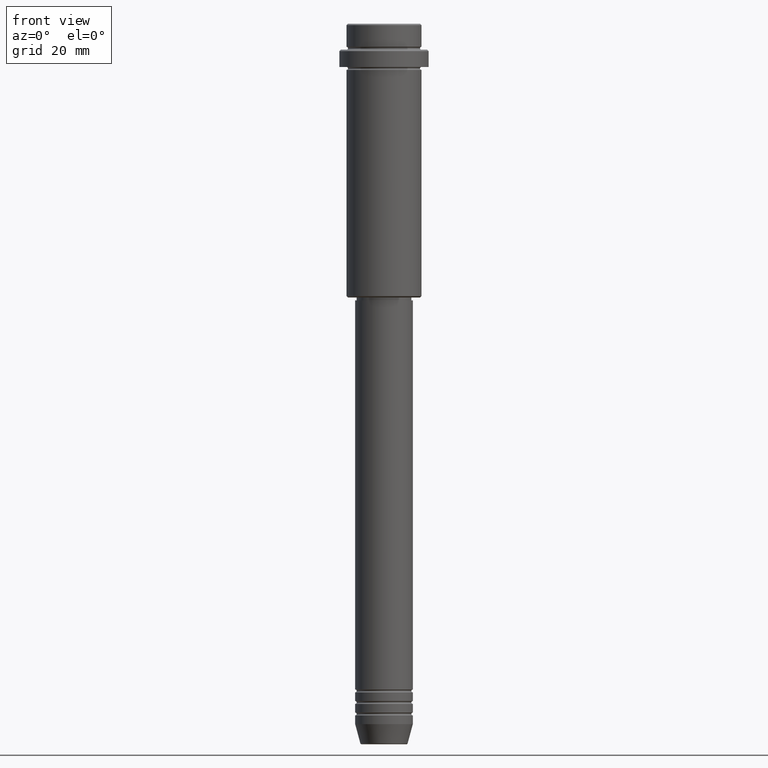
[diagram: clean part render]
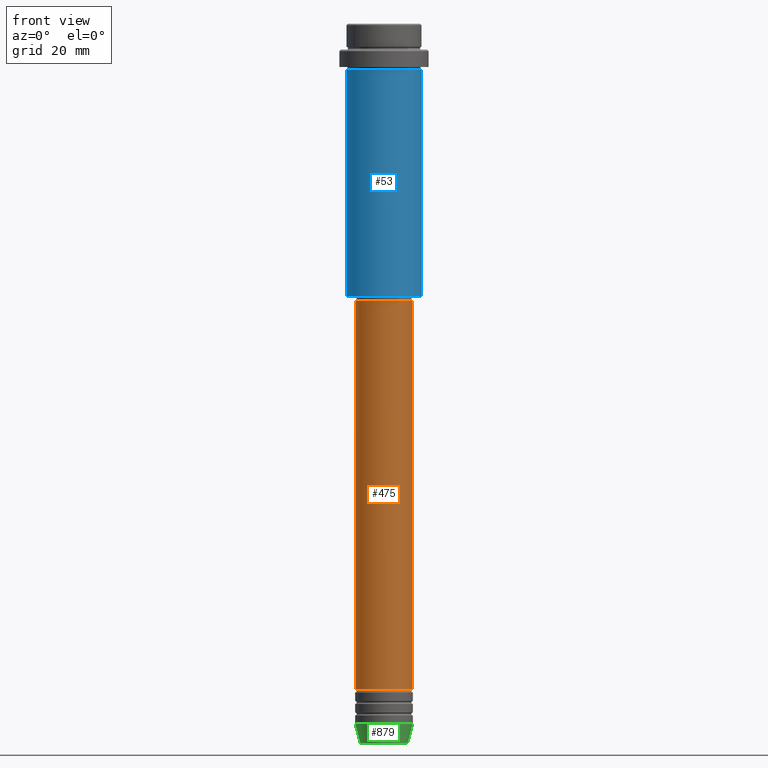
[diagram: same view with three faces highlighted in distinct colors, each labeled with its STEP entity id]
A machine part, front view with three faces highlighted in distinct colors.
Their STEP definitions:

[orange] entity #475 — the highlighted cylindrical surface (edge-blend (fillet) strip) has radius 10 mm, axis along (-0, -0, 1).
#41 = ORIENTED_EDGE ( 'NONE', *, *, #507, .T. ) ;
#45 = ORIENTED_EDGE ( 'NONE', *, *, #443, .F. ) ;
#76 = FACE_OUTER_BOUND ( 'NONE', #1351, .T. ) ;
#78 = EDGE_CURVE ( 'NONE', #1259, #1372, #1269, .T. ) ;
#166 = AXIS2_PLACEMENT_3D ( 'NONE', #401, #537, #856 ) ;
#181 = CARTESIAN_POINT ( 'NONE',  ( 0.000000000000000000, 0.000000000000000000, -96.00000000000000000 ) ) ;
#224 = CARTESIAN_POINT ( 'NONE',  ( -10.00000000000000178, 1.224646799147353454E-15, -96.00000000000000000 ) ) ;
#254 = DIRECTION ( 'NONE',  ( -0.000000000000000000, -0.000000000000000000, 1.000000000000000000 ) ) ;
#265 = CARTESIAN_POINT ( 'NONE',  ( -10.00000000000000178, 1.224646799147353454E-15, 0.000000000000000000 ) ) ;
#330 = CARTESIAN_POINT ( 'NONE',  ( -10.00000000000000000, 1.224646799147353256E-15, -230.9999999999998863 ) ) ;
#351 = ORIENTED_EDGE ( 'NONE', *, *, #78, .F. ) ;
#379 = CARTESIAN_POINT ( 'NONE',  ( 10.00000000000000000, 0.000000000000000000, -230.9999999999998863 ) ) ;
#401 = CARTESIAN_POINT ( 'NONE',  ( 0.000000000000000000, 0.000000000000000000, 0.000000000000000000 ) ) ;
#443 = EDGE_CURVE ( 'NONE', #1372, #1224, #1382, .T. ) ;
#475 = ADVANCED_FACE ( 'NONE', ( #76 ), #941, .T. ) ;
#507 = EDGE_CURVE ( 'NONE', #658, #1224, #1120, .T. ) ;
#537 = DIRECTION ( 'NONE',  ( -0.000000000000000000, -0.000000000000000000, 1.000000000000000000 ) ) ;
#575 = DIRECTION ( 'NONE',  ( 1.000000000000000000, 0.000000000000000000, 0.000000000000000000 ) ) ;
#579 = VECTOR ( 'NONE', #927, 1000.000000000000000 ) ;
#599 = EDGE_CURVE ( 'NONE', #1259, #658, #1289, .T. ) ;
#658 = VERTEX_POINT ( 'NONE', #379 ) ;
#692 = CARTESIAN_POINT ( 'NONE',  ( 0.000000000000000000, 0.000000000000000000, -230.9999999999998863 ) ) ;
#780 = AXIS2_PLACEMENT_3D ( 'NONE', #181, #840, #1373 ) ;
#799 = CARTESIAN_POINT ( 'NONE',  ( 10.00000000000000178, 0.000000000000000000, 0.000000000000000000 ) ) ;
#825 = VECTOR ( 'NONE', #254, 1000.000000000000000 ) ;
#840 = DIRECTION ( 'NONE',  ( -0.000000000000000000, -0.000000000000000000, 1.000000000000000000 ) ) ;
#856 = DIRECTION ( 'NONE',  ( 1.000000000000000000, 0.000000000000000000, 0.000000000000000000 ) ) ;
#927 = DIRECTION ( 'NONE',  ( -0.000000000000000000, -0.000000000000000000, 1.000000000000000000 ) ) ;
#941 = CYLINDRICAL_SURFACE ( 'NONE', #166, 10.00000000000000178 ) ;
#1120 = LINE ( 'NONE', #799, #825 ) ;
#1215 = DIRECTION ( 'NONE',  ( -0.000000000000000000, -0.000000000000000000, 1.000000000000000000 ) ) ;
#1224 = VERTEX_POINT ( 'NONE', #1280 ) ;
#1235 = ORIENTED_EDGE ( 'NONE', *, *, #599, .T. ) ;
#1259 = VERTEX_POINT ( 'NONE', #330 ) ;
#1269 = LINE ( 'NONE', #265, #579 ) ;
#1280 = CARTESIAN_POINT ( 'NONE',  ( 10.00000000000000178, 0.000000000000000000, -96.00000000000000000 ) ) ;
#1289 = CIRCLE ( 'NONE', #1310, 10.00000000000000000 ) ;
#1310 = AXIS2_PLACEMENT_3D ( 'NONE', #692, #1215, #575 ) ;
#1351 = EDGE_LOOP ( 'NONE', ( #351, #1235, #41, #45 ) ) ;
#1372 = VERTEX_POINT ( 'NONE', #224 ) ;
#1373 = DIRECTION ( 'NONE',  ( 1.000000000000000000, 0.000000000000000000, 0.000000000000000000 ) ) ;
#1382 = CIRCLE ( 'NONE', #780, 10.00000000000000178 ) ;

[blue] entity #53 — the highlighted cylindrical surface (partial cylindrical patch) has radius 13 mm, axis along (-0, -0, 1).
#5 = CARTESIAN_POINT ( 'NONE',  ( 0.000000000000000000, 0.000000000000000000, -94.50000000000000000 ) ) ;
#6 = LINE ( 'NONE', #14, #1064 ) ;
#14 = CARTESIAN_POINT ( 'NONE',  ( -13.00000000000000000, 1.592040838891559095E-15, 0.000000000000000000 ) ) ;
#53 = ADVANCED_FACE ( 'NONE', ( #1032 ), #945, .T. ) ;
#64 = CARTESIAN_POINT ( 'NONE',  ( 0.000000000000000000, 0.000000000000000000, 0.000000000000000000 ) ) ;
#69 = DIRECTION ( 'NONE',  ( -0.000000000000000000, -0.000000000000000000, 1.000000000000000000 ) ) ;
#84 = AXIS2_PLACEMENT_3D ( 'NONE', #5, #984, #428 ) ;
#138 = VERTEX_POINT ( 'NONE', #634 ) ;
#195 = VERTEX_POINT ( 'NONE', #981 ) ;
#231 = VECTOR ( 'NONE', #69, 1000.000000000000000 ) ;
#306 = ORIENTED_EDGE ( 'NONE', *, *, #1344, .F. ) ;
#318 = CARTESIAN_POINT ( 'NONE',  ( 0.000000000000000000, 0.000000000000000000, -16.00000000000000000 ) ) ;
#408 = LINE ( 'NONE', #957, #231 ) ;
#428 = DIRECTION ( 'NONE',  ( -1.000000000000000000, 0.000000000000000000, 0.000000000000000000 ) ) ;
#430 = EDGE_CURVE ( 'NONE', #138, #561, #408, .T. ) ;
#456 = CARTESIAN_POINT ( 'NONE',  ( -13.00000000000000000, 1.592040838891559095E-15, -94.50000000000000000 ) ) ;
#494 = DIRECTION ( 'NONE',  ( -0.000000000000000000, -0.000000000000000000, 1.000000000000000000 ) ) ;
#561 = VERTEX_POINT ( 'NONE', #708 ) ;
#634 = CARTESIAN_POINT ( 'NONE',  ( 13.00000000000000000, 0.000000000000000000, -94.50000000000000000 ) ) ;
#635 = DIRECTION ( 'NONE',  ( -0.000000000000000000, -0.000000000000000000, 1.000000000000000000 ) ) ;
#654 = CIRCLE ( 'NONE', #1335, 13.00000000000000000 ) ;
#689 = ORIENTED_EDGE ( 'NONE', *, *, #1077, .F. ) ;
#691 = EDGE_LOOP ( 'NONE', ( #306, #1367, #727, #689 ) ) ;
#708 = CARTESIAN_POINT ( 'NONE',  ( 13.00000000000000000, 0.000000000000000000, -16.00000000000000000 ) ) ;
#727 = ORIENTED_EDGE ( 'NONE', *, *, #430, .T. ) ;
#769 = EDGE_CURVE ( 'NONE', #917, #138, #1017, .T. ) ;
#869 = DIRECTION ( 'NONE',  ( -0.000000000000000000, -0.000000000000000000, 1.000000000000000000 ) ) ;
#917 = VERTEX_POINT ( 'NONE', #456 ) ;
#945 = CYLINDRICAL_SURFACE ( 'NONE', #1378, 13.00000000000000000 ) ;
#957 = CARTESIAN_POINT ( 'NONE',  ( 13.00000000000000000, 0.000000000000000000, 0.000000000000000000 ) ) ;
#981 = CARTESIAN_POINT ( 'NONE',  ( -13.00000000000000000, 1.592040838891559095E-15, -16.00000000000000000 ) ) ;
#984 = DIRECTION ( 'NONE',  ( -0.000000000000000000, -0.000000000000000000, 1.000000000000000000 ) ) ;
#1017 = CIRCLE ( 'NONE', #84, 13.00000000000000000 ) ;
#1032 = FACE_OUTER_BOUND ( 'NONE', #691, .T. ) ;
#1064 = VECTOR ( 'NONE', #869, 1000.000000000000000 ) ;
#1071 = DIRECTION ( 'NONE',  ( 1.000000000000000000, 0.000000000000000000, 0.000000000000000000 ) ) ;
#1077 = EDGE_CURVE ( 'NONE', #195, #561, #654, .T. ) ;
#1160 = DIRECTION ( 'NONE',  ( 1.000000000000000000, 0.000000000000000000, 0.000000000000000000 ) ) ;
#1335 = AXIS2_PLACEMENT_3D ( 'NONE', #318, #635, #1071 ) ;
#1344 = EDGE_CURVE ( 'NONE', #917, #195, #6, .T. ) ;
#1367 = ORIENTED_EDGE ( 'NONE', *, *, #769, .T. ) ;
#1378 = AXIS2_PLACEMENT_3D ( 'NONE', #64, #494, #1160 ) ;

[green] entity #879 — the highlighted conical surface has half-angle 15 deg.
#10 = CONICAL_SURFACE ( 'NONE', #1313, 10.00000000000000000, 0.2617993877991500740 ) ;
#34 = ORIENTED_EDGE ( 'NONE', *, *, #995, .T. ) ;
#116 = CARTESIAN_POINT ( 'NONE',  ( 8.223655072137198374, 0.000000000000000000, -249.6294095225512422 ) ) ;
#139 = CARTESIAN_POINT ( 'NONE',  ( 10.00000000000000000, 0.000000000000000000, -243.0000000000000000 ) ) ;
#156 = VERTEX_POINT ( 'NONE', #742 ) ;
#176 = DIRECTION ( 'NONE',  ( -0.2588190451025213501, 3.169619151431772337E-17, 0.9659258262890680902 ) ) ;
#227 = VERTEX_POINT ( 'NONE', #139 ) ;
#358 = CIRCLE ( 'NONE', #1131, 8.223655072137198374 ) ;
#415 = CARTESIAN_POINT ( 'NONE',  ( -10.00000000000000000, 1.224646799147353256E-15, -243.0000000000000000 ) ) ;
#485 = CARTESIAN_POINT ( 'NONE',  ( 0.000000000000000000, 0.000000000000000000, -249.6294095225512422 ) ) ;
#502 = DIRECTION ( 'NONE',  ( -0.000000000000000000, -0.000000000000000000, 1.000000000000000000 ) ) ;
#589 = DIRECTION ( 'NONE',  ( 1.000000000000000000, 0.000000000000000000, 0.000000000000000000 ) ) ;
#611 = DIRECTION ( 'NONE',  ( 1.000000000000000000, 0.000000000000000000, 0.000000000000000000 ) ) ;
#629 = VERTEX_POINT ( 'NONE', #794 ) ;
#648 = ORIENTED_EDGE ( 'NONE', *, *, #1178, .F. ) ;
#677 = CARTESIAN_POINT ( 'NONE',  ( 0.000000000000000000, 0.000000000000000000, -243.0000000000000000 ) ) ;
#742 = CARTESIAN_POINT ( 'NONE',  ( -8.223655072137198374, 1.115877042642912645E-15, -249.6294095225512422 ) ) ;
#785 = VECTOR ( 'NONE', #176, 1000.000000000000000 ) ;
#794 = CARTESIAN_POINT ( 'NONE',  ( -10.00000000000000000, 1.224646799147353256E-15, -243.0000000000000000 ) ) ;
#816 = EDGE_CURVE ( 'NONE', #1254, #227, #868, .T. ) ;
#827 = DIRECTION ( 'NONE',  ( 1.000000000000000000, 0.000000000000000000, 0.000000000000000000 ) ) ;
#868 = LINE ( 'NONE', #1314, #923 ) ;
#879 = ADVANCED_FACE ( 'NONE', ( #1104 ), #10, .T. ) ;
#923 = VECTOR ( 'NONE', #1199, 1000.000000000000000 ) ;
#932 = EDGE_LOOP ( 'NONE', ( #648, #34, #1086, #1170 ) ) ;
#948 = AXIS2_PLACEMENT_3D ( 'NONE', #1368, #1053, #611 ) ;
#995 = EDGE_CURVE ( 'NONE', #156, #1254, #358, .T. ) ;
#1002 = DIRECTION ( 'NONE',  ( -0.000000000000000000, -0.000000000000000000, 1.000000000000000000 ) ) ;
#1018 = CIRCLE ( 'NONE', #948, 10.00000000000000000 ) ;
#1053 = DIRECTION ( 'NONE',  ( -0.000000000000000000, -0.000000000000000000, 1.000000000000000000 ) ) ;
#1086 = ORIENTED_EDGE ( 'NONE', *, *, #816, .T. ) ;
#1104 = FACE_OUTER_BOUND ( 'NONE', #932, .T. ) ;
#1131 = AXIS2_PLACEMENT_3D ( 'NONE', #485, #502, #827 ) ;
#1166 = LINE ( 'NONE', #415, #785 ) ;
#1170 = ORIENTED_EDGE ( 'NONE', *, *, #1188, .F. ) ;
#1178 = EDGE_CURVE ( 'NONE', #156, #629, #1166, .T. ) ;
#1188 = EDGE_CURVE ( 'NONE', #629, #227, #1018, .T. ) ;
#1199 = DIRECTION ( 'NONE',  ( 0.2588190451025213501, 0.000000000000000000, 0.9659258262890680902 ) ) ;
#1254 = VERTEX_POINT ( 'NONE', #116 ) ;
#1313 = AXIS2_PLACEMENT_3D ( 'NONE', #677, #1002, #589 ) ;
#1314 = CARTESIAN_POINT ( 'NONE',  ( 10.00000000000000000, 0.000000000000000000, -243.0000000000000000 ) ) ;
#1368 = CARTESIAN_POINT ( 'NONE',  ( 0.000000000000000000, 0.000000000000000000, -243.0000000000000000 ) ) ;